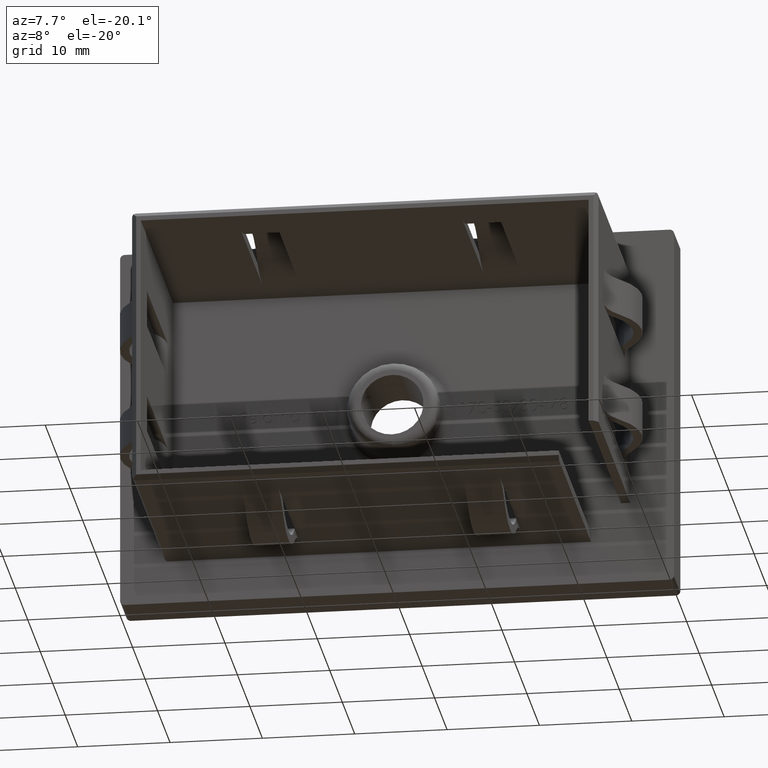
[diagram: clean part render]
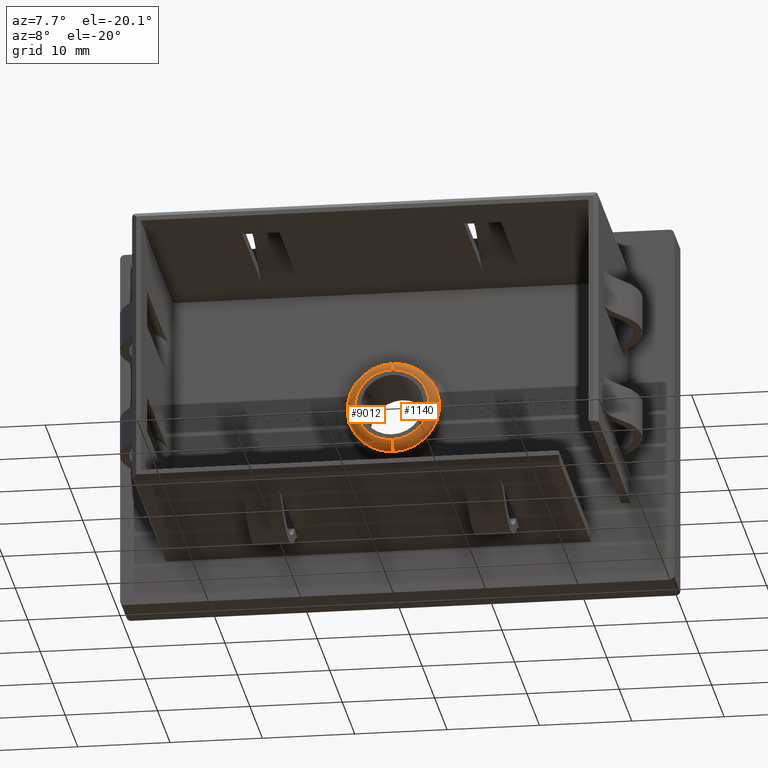
[diagram: same view with one multi-face feature highlighted, each face labeled with its STEP entity id]
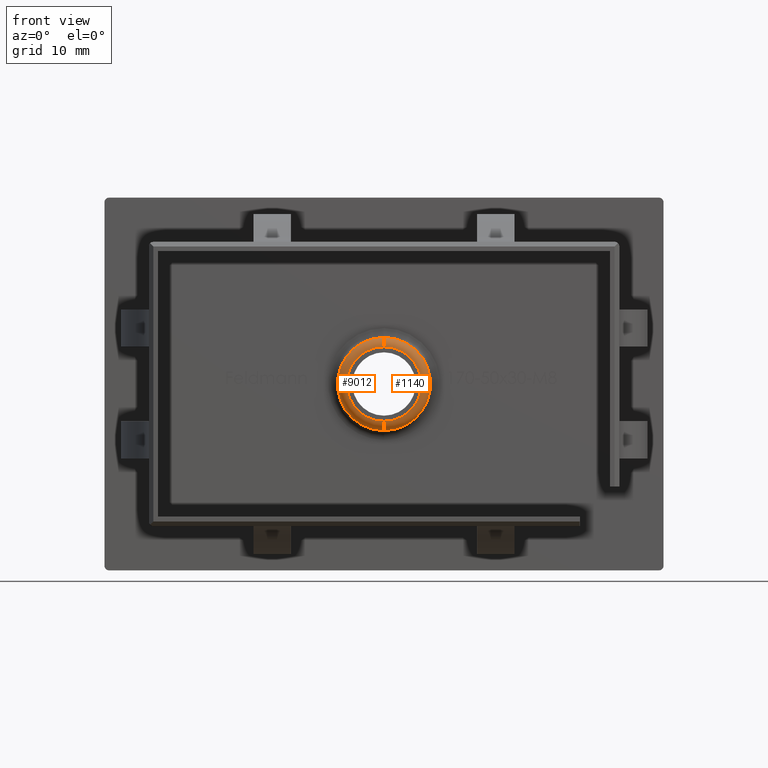
[diagram: same view with one multi-face feature highlighted, each face labeled with its STEP entity id]
A machine part, auxiliary view. The highlighted faces form ONE feature: a constant-radius fillet chain: 2 tangent blend faces with common blend radius 1 mm. The faces share edges in the B-rep.
A second angle (front view) of the same feature is appended — it is thin or edge-on in the first view.
Their STEP definitions:
[1] entity #9012 (Torus):
#117 = VERTEX_POINT ( 'NONE', #12298 ) ;
#314 = AXIS2_PLACEMENT_3D ( 'NONE', #12546, #6965, #18228 ) ;
#876 = DIRECTION ( 'NONE',  ( 0.0000000000000000000, 0.0000000000000000000, 1.000000000000000000 ) ) ;
#1459 = VERTEX_POINT ( 'NONE', #6078 ) ;
#1504 = FACE_OUTER_BOUND ( 'NONE', #11624, .T. ) ;
#1660 = ORIENTED_EDGE ( 'NONE', *, *, #12629, .F. ) ;
#2690 = CARTESIAN_POINT ( 'NONE',  ( 0.0000000000000000000, -3.999999999999999100, 4.000000000000000000 ) ) ;
#3860 = CIRCLE ( 'NONE', #9957, 1.000000000000000000 ) ;
#3914 = ORIENTED_EDGE ( 'NONE', *, *, #9738, .T. ) ;
#4478 = AXIS2_PLACEMENT_3D ( 'NONE', #7947, #13734, #876 ) ;
#4940 = DIRECTION ( 'NONE',  ( 0.0000000000000000000, 0.0000000000000000000, 1.000000000000000000 ) ) ;
#5495 = ORIENTED_EDGE ( 'NONE', *, *, #10765, .F. ) ;
#5796 = VERTEX_POINT ( 'NONE', #2690 ) ;
#6078 = CARTESIAN_POINT ( 'NONE',  ( 0.0000000000000000000, -2.999999999999999100, 5.000000000000000000 ) ) ;
#6684 = CIRCLE ( 'NONE', #314, 4.000000000000000000 ) ;
#6965 = DIRECTION ( 'NONE',  ( -0.0000000000000000000, -1.000000000000000000, -0.0000000000000000000 ) ) ;
#7030 = ORIENTED_EDGE ( 'NONE', *, *, #16043, .F. ) ;
#7278 = DIRECTION ( 'NONE',  ( 0.0000000000000000000, 0.0000000000000000000, 1.000000000000000000 ) ) ;
#7947 = CARTESIAN_POINT ( 'NONE',  ( 0.0000000000000000000, -2.999999999999999100, 0.0000000000000000000 ) ) ;
#8304 = DIRECTION ( 'NONE',  ( 1.000000000000000000, -0.0000000000000000000, 1.224646799147353200E-016 ) ) ;
#9012 = ADVANCED_FACE ( 'NONE', ( #1504 ), #13444, .T. ) ;
#9196 = AXIS2_PLACEMENT_3D ( 'NONE', #15151, #10799, #4940 ) ;
#9738 = EDGE_CURVE ( 'NONE', #5796, #1459, #14505, .T. ) ;
#9744 = DIRECTION ( 'NONE',  ( 1.224646799147353500E-016, 0.0000000000000000000, -1.000000000000000000 ) ) ;
#9805 = AXIS2_PLACEMENT_3D ( 'NONE', #14510, #13044, #7278 ) ;
#9957 = AXIS2_PLACEMENT_3D ( 'NONE', #16835, #8304, #9744 ) ;
#10765 = EDGE_CURVE ( 'NONE', #117, #11438, #3860, .T. ) ;
#10799 = DIRECTION ( 'NONE',  ( -1.000000000000000000, 0.0000000000000000000, 0.0000000000000000000 ) ) ;
#11438 = VERTEX_POINT ( 'NONE', #14831 ) ;
#11624 = EDGE_LOOP ( 'NONE', ( #5495, #7030, #3914, #1660 ) ) ;
#12298 = CARTESIAN_POINT ( 'NONE',  ( 5.510910596163088600E-016, -3.999999999999999100, -4.000000000000000000 ) ) ;
#12546 = CARTESIAN_POINT ( 'NONE',  ( 0.0000000000000000000, -3.999999999999999100, 0.0000000000000000000 ) ) ;
#12629 = EDGE_CURVE ( 'NONE', #11438, #1459, #16416, .T. ) ;
#13044 = DIRECTION ( 'NONE',  ( 0.0000000000000000000, 1.000000000000000000, 0.0000000000000000000 ) ) ;
#13444 = TOROIDAL_SURFACE ( 'NONE', #4478, 4.000000000000000000, 1.000000000000000000 ) ;
#13734 = DIRECTION ( 'NONE',  ( 0.0000000000000000000, 1.000000000000000000, 0.0000000000000000000 ) ) ;
#14505 = CIRCLE ( 'NONE', #9196, 1.000000000000000000 ) ;
#14510 = CARTESIAN_POINT ( 'NONE',  ( 0.0000000000000000000, -2.999999999999999100, 0.0000000000000000000 ) ) ;
#14831 = CARTESIAN_POINT ( 'NONE',  ( 6.123233995736766300E-016, -2.999999999999999100, -5.000000000000000000 ) ) ;
#15151 = CARTESIAN_POINT ( 'NONE',  ( 0.0000000000000000000, -2.999999999999999100, 4.000000000000000000 ) ) ;
#16043 = EDGE_CURVE ( 'NONE', #5796, #117, #6684, .T. ) ;
#16416 = CIRCLE ( 'NONE', #9805, 5.000000000000000000 ) ;
#16835 = CARTESIAN_POINT ( 'NONE',  ( 4.898587196589412800E-016, -2.999999999999999100, -4.000000000000000000 ) ) ;
#18228 = DIRECTION ( 'NONE',  ( 0.0000000000000000000, 0.0000000000000000000, 1.000000000000000000 ) ) ;
[2] entity #1140 (Torus):
#90 = ORIENTED_EDGE ( 'NONE', *, *, #14970, .F. ) ;
#117 = VERTEX_POINT ( 'NONE', #12298 ) ;
#777 = AXIS2_PLACEMENT_3D ( 'NONE', #16022, #7494, #8931 ) ;
#1140 = ADVANCED_FACE ( 'NONE', ( #12350 ), #11457, .T. ) ;
#1459 = VERTEX_POINT ( 'NONE', #6078 ) ;
#1549 = DIRECTION ( 'NONE',  ( 0.0000000000000000000, 1.000000000000000000, 0.0000000000000000000 ) ) ;
#1750 = AXIS2_PLACEMENT_3D ( 'NONE', #10184, #1549, #11671 ) ;
#2690 = CARTESIAN_POINT ( 'NONE',  ( 0.0000000000000000000, -3.999999999999999100, 4.000000000000000000 ) ) ;
#3860 = CIRCLE ( 'NONE', #9957, 1.000000000000000000 ) ;
#4940 = DIRECTION ( 'NONE',  ( 0.0000000000000000000, 0.0000000000000000000, 1.000000000000000000 ) ) ;
#5254 = ORIENTED_EDGE ( 'NONE', *, *, #9663, .F. ) ;
#5796 = VERTEX_POINT ( 'NONE', #2690 ) ;
#6078 = CARTESIAN_POINT ( 'NONE',  ( 0.0000000000000000000, -2.999999999999999100, 5.000000000000000000 ) ) ;
#7494 = DIRECTION ( 'NONE',  ( 0.0000000000000000000, 1.000000000000000000, 0.0000000000000000000 ) ) ;
#7768 = AXIS2_PLACEMENT_3D ( 'NONE', #10672, #12225, #13569 ) ;
#8304 = DIRECTION ( 'NONE',  ( 1.000000000000000000, -0.0000000000000000000, 1.224646799147353200E-016 ) ) ;
#8753 = CIRCLE ( 'NONE', #1750, 5.000000000000000000 ) ;
#8931 = DIRECTION ( 'NONE',  ( 0.0000000000000000000, 0.0000000000000000000, 1.000000000000000000 ) ) ;
#9167 = ORIENTED_EDGE ( 'NONE', *, *, #10765, .T. ) ;
#9196 = AXIS2_PLACEMENT_3D ( 'NONE', #15151, #10799, #4940 ) ;
#9663 = EDGE_CURVE ( 'NONE', #117, #5796, #15602, .T. ) ;
#9738 = EDGE_CURVE ( 'NONE', #5796, #1459, #14505, .T. ) ;
#9744 = DIRECTION ( 'NONE',  ( 1.224646799147353500E-016, 0.0000000000000000000, -1.000000000000000000 ) ) ;
#9957 = AXIS2_PLACEMENT_3D ( 'NONE', #16835, #8304, #9744 ) ;
#10184 = CARTESIAN_POINT ( 'NONE',  ( 0.0000000000000000000, -2.999999999999999100, 0.0000000000000000000 ) ) ;
#10672 = CARTESIAN_POINT ( 'NONE',  ( 0.0000000000000000000, -3.999999999999999100, 0.0000000000000000000 ) ) ;
#10765 = EDGE_CURVE ( 'NONE', #117, #11438, #3860, .T. ) ;
#10799 = DIRECTION ( 'NONE',  ( -1.000000000000000000, 0.0000000000000000000, 0.0000000000000000000 ) ) ;
#11358 = ORIENTED_EDGE ( 'NONE', *, *, #9738, .F. ) ;
#11438 = VERTEX_POINT ( 'NONE', #14831 ) ;
#11457 = TOROIDAL_SURFACE ( 'NONE', #777, 4.000000000000000000, 1.000000000000000000 ) ;
#11562 = EDGE_LOOP ( 'NONE', ( #5254, #9167, #90, #11358 ) ) ;
#11671 = DIRECTION ( 'NONE',  ( 0.0000000000000000000, 0.0000000000000000000, 1.000000000000000000 ) ) ;
#12225 = DIRECTION ( 'NONE',  ( -0.0000000000000000000, -1.000000000000000000, -0.0000000000000000000 ) ) ;
#12298 = CARTESIAN_POINT ( 'NONE',  ( 5.510910596163088600E-016, -3.999999999999999100, -4.000000000000000000 ) ) ;
#12350 = FACE_OUTER_BOUND ( 'NONE', #11562, .T. ) ;
#13569 = DIRECTION ( 'NONE',  ( 0.0000000000000000000, 0.0000000000000000000, 1.000000000000000000 ) ) ;
#14505 = CIRCLE ( 'NONE', #9196, 1.000000000000000000 ) ;
#14831 = CARTESIAN_POINT ( 'NONE',  ( 6.123233995736766300E-016, -2.999999999999999100, -5.000000000000000000 ) ) ;
#14970 = EDGE_CURVE ( 'NONE', #1459, #11438, #8753, .T. ) ;
#15151 = CARTESIAN_POINT ( 'NONE',  ( 0.0000000000000000000, -2.999999999999999100, 4.000000000000000000 ) ) ;
#15602 = CIRCLE ( 'NONE', #7768, 4.000000000000000000 ) ;
#16022 = CARTESIAN_POINT ( 'NONE',  ( 0.0000000000000000000, -2.999999999999999100, 0.0000000000000000000 ) ) ;
#16835 = CARTESIAN_POINT ( 'NONE',  ( 4.898587196589412800E-016, -2.999999999999999100, -4.000000000000000000 ) ) ;